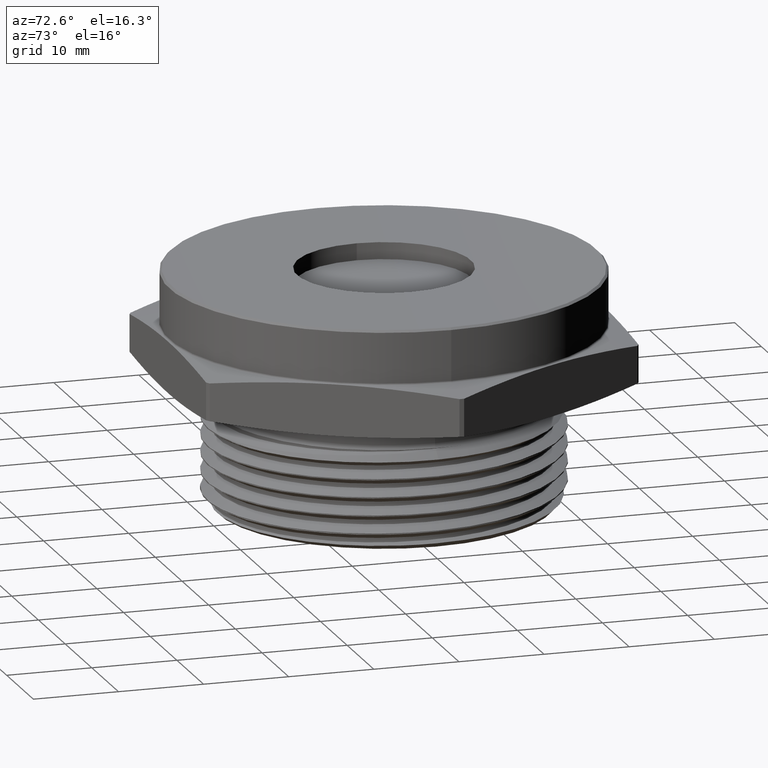
[diagram: clean part render]
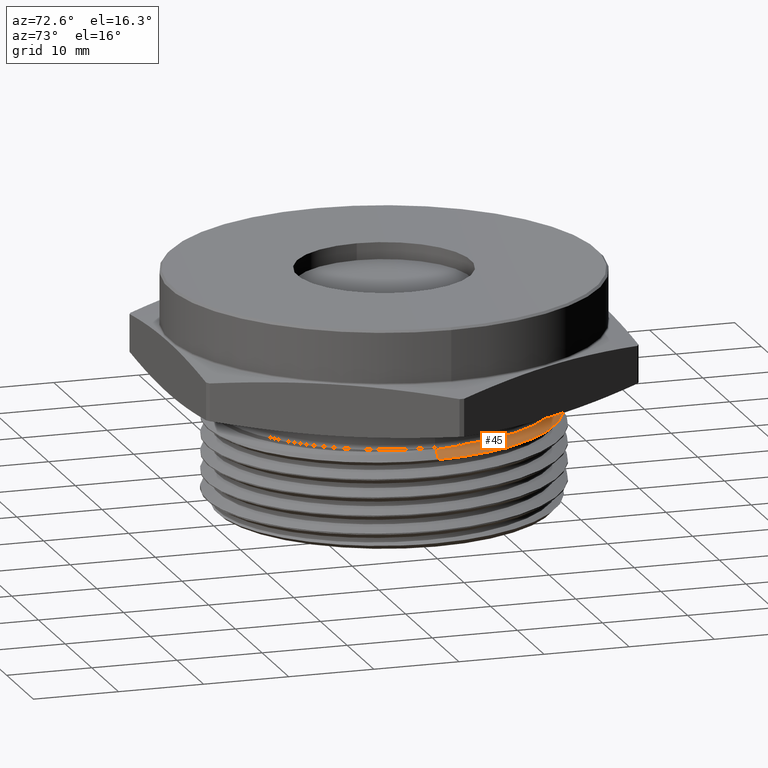
[diagram: same view with one face highlighted and labeled with its STEP entity id]
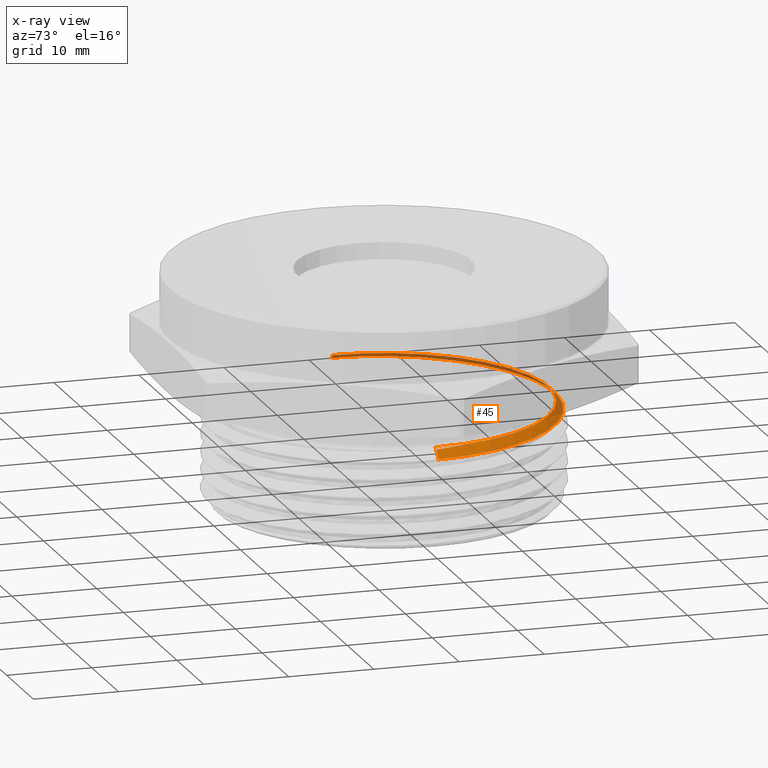
[diagram: x-ray of the same camera — body ghosted, the highlighted face saturated]
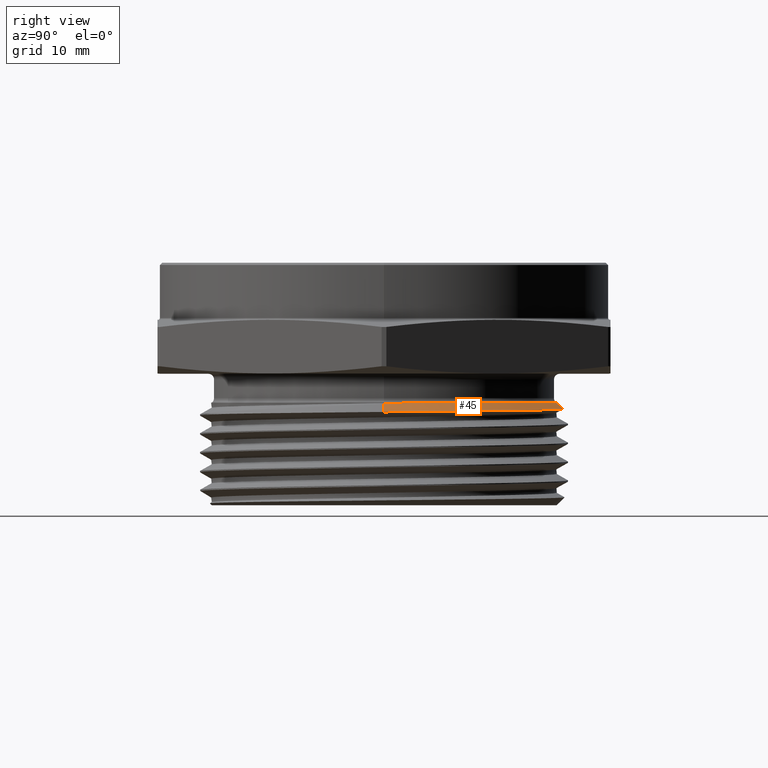
[diagram: same view with one face highlighted and labeled with its STEP entity id]
A machine part, auxiliary view. The second image highlights one B-rep face of the part: STEP entity #45.
The next image is the same camera in x-ray: the body ghosted, the highlighted face saturated — about 36% of this face is hidden behind the body in this view.
A second angle (right view) of the same face is appended — the face is thin or edge-on in the first view.
In plain terms, the highlighted conical surface has half-angle 45 deg.
Its self-contained STEP definition (entity closure, byte-faithful):
#45 = ADVANCED_FACE ( 'NONE', ( #763 ), #767, .T. ) ;
#86 = ORIENTED_EDGE ( 'NONE', *, *, #2910, .T. ) ;
#87 = ORIENTED_EDGE ( 'NONE', *, *, #2925, .F. ) ;
#88 = ORIENTED_EDGE ( 'NONE', *, *, #2930, .F. ) ;
#89 = ORIENTED_EDGE ( 'NONE', *, *, #2911, .T. ) ;
#90 = ORIENTED_EDGE ( 'NONE', *, *, #2955, .F. ) ;
#91 = ORIENTED_EDGE ( 'NONE', *, *, #2954, .F. ) ;
#225 = ORIENTED_EDGE ( 'NONE', *, *, #2900, .F. ) ;
#347 = AXIS2_PLACEMENT_3D ( 'NONE', #2001, #2002, #2003 ) ;
#502 = VERTEX_POINT ( 'NONE', #1937 ) ;
#514 = VERTEX_POINT ( 'NONE', #1949 ) ;
#515 = VERTEX_POINT ( 'NONE', #1950 ) ;
#516 = VERTEX_POINT ( 'NONE', #1951 ) ;
#533 = VERTEX_POINT ( 'NONE', #1968 ) ;
#564 = VERTEX_POINT ( 'NONE', #1974 ) ;
#567 = VERTEX_POINT ( 'NONE', #1971 ) ;
#571 = VECTOR ( 'NONE', #2386, 39.37007874015748100 ) ;
#616 = LINE ( 'NONE', #2638, #619 ) ;
#619 = VECTOR ( 'NONE', #2667, 39.37007874015748100 ) ;
#652 = B_SPLINE_CURVE_WITH_KNOTS ( 'NONE', 3,
 ( #2509, #2508, #2513, #2514, #2515, #2516 ),
 .UNSPECIFIED., .F., .F.,
 ( 4, 2, 4 ),
 ( 1.386310427918241200E-014, 0.001769911165737978300, 0.003539822331462093600 ),
 .UNSPECIFIED. ) ;
#653 = B_SPLINE_CURVE_WITH_KNOTS ( 'NONE', 3,
 ( #2525, #2526, #2531, #2532 ),
 .UNSPECIFIED., .F., .F.,
 ( 4, 4 ),
 ( 0.02832692757914272200, 0.03189190522908355600 ),
 .UNSPECIFIED. ) ;
#659 = B_SPLINE_CURVE_WITH_KNOTS ( 'NONE', 3,
 ( #2668, #2637, #2670, #2671, #2672, #2673, #2674, #2675, #2676, #2677, #2678, #2679, #2680, #2681, #2682, #2683, #2684, #2685, #2686, #2687, #2688, #2689, #2690, #2691, #2692, #2693, #2694, #2695, #2696, #2697, #2698, #2699, #2700, #2701, #2702, #2703, #2704, #2705, #2706, #2707, #2708, #2709, #2710, #2711, #2712, #2713, #2714, #2715, #2716, #2717, #2718, #2719, #2720 ),
 .UNSPECIFIED., .F., .F.,
 ( 4, 2, 2, 1, 2, 2, 2, 2, 2, 2, 2, 2, 2, 2, 2, 2, 2, 2, 2, 2, 2, 2, 2, 2, 2, 2, 4 ),
 ( 0.03438997845069422700, 0.03835951205564315500, 0.04034427885811761600, 0.04232904566059207700, 0.04431381246306654400, 0.04530619586430377500, 0.04629857926554100500, 0.05026811287048994100, 0.05225287967296440800, 0.05423764647543888300, 0.05820718008038782600, 0.06019194688286229300, 0.06217671368533676800, 0.06416148048781124300, 0.06614624729028571700, 0.06813101409276017800, 0.07011578089523465300, 0.07408531450018360200, 0.07607008130265807700, 0.07805484810513255200, 0.08202438171008150100, 0.08400914851255597600, 0.08599391531503045000, 0.08996344891997941400, 0.09393298252492837700, 0.09591774932740285100, 0.09790251612987732600 ),
 .UNSPECIFIED. ) ;
#681 = CIRCLE ( 'NONE', #347, 0.7608223304703362100 ) ;
#697 = LINE ( 'NONE', #2378, #571 ) ;
#698 = LINE ( 'NONE', #2383, #701 ) ;
#701 = VECTOR ( 'NONE', #2385, 39.37007874015748100 ) ;
#735 = EDGE_LOOP ( 'NONE', ( #225, #86, #87, #88, #89, #90, #91 ) ) ;
#763 = FACE_OUTER_BOUND ( 'NONE', #735, .T. ) ;
#767 = CONICAL_SURFACE ( 'NONE', #3050, 0.7608223304703362100, 0.7853981633974495000 ) ;
#1937 = CARTESIAN_POINT ( 'NONE',  ( 0.8040400298460570500, 4.445146054529566800E-013, -0.1682176993757205100 ) ) ;
#1949 = CARTESIAN_POINT ( 'NONE',  ( 0.7608223304703362100, 9.633820780187758700E-017, -0.1249999999999998100 ) ) ;
#1950 = CARTESIAN_POINT ( 'NONE',  ( 0.7685600938738961200, -5.681566719544359700E-013, -0.1327377634035593100 ) ) ;
#1951 = CARTESIAN_POINT ( 'NONE',  ( -0.7776244216704032400, -9.342308343421344400E-013, -0.1418020912000668400 ) ) ;
#1968 = CARTESIAN_POINT ( 'NONE',  ( 0.7502751674670811200, 0.1382157121395530000, -0.1270776695296543500 ) ) ;
#1971 = CARTESIAN_POINT ( 'NONE',  ( -0.7608223304703362100, 0.0000000000000000000, -0.1249999999999998100 ) ) ;
#1974 = CARTESIAN_POINT ( 'NONE',  ( 0.7629000000000002400, 3.261332281521057500E-016, -0.1270776695296640100 ) ) ;
#2001 = CARTESIAN_POINT ( 'NONE',  ( 0.0000000000000000000, 0.0000000000000000000, -0.1249999999999998100 ) ) ;
#2002 = DIRECTION ( 'NONE',  ( -0.0000000000000000000, -0.0000000000000000000, 1.000000000000000000 ) ) ;
#2003 = DIRECTION ( 'NONE',  ( 1.000000000000000000, 0.0000000000000000000, 0.0000000000000000000 ) ) ;
#2378 = CARTESIAN_POINT ( 'NONE',  ( 0.7608223304703362100, 9.317386317303269300E-017, -0.1249999999999998100 ) ) ;
#2383 = CARTESIAN_POINT ( 'NONE',  ( 0.7608223304703362100, 9.317386317303269300E-017, -0.1249999999999998100 ) ) ;
#2385 = DIRECTION ( 'NONE',  ( 0.7071067811865483500, 8.659560562354942700E-017, -0.7071067811865466800 ) ) ;
#2386 = DIRECTION ( 'NONE',  ( 0.7071067811865483500, 8.659560562354942700E-017, -0.7071067811865466800 ) ) ;
#2508 = CARTESIAN_POINT ( 'NONE',  ( 0.7544848409670316100, 0.1153643775027152900, -0.1270776695296639600 ) ) ;
#2509 = CARTESIAN_POINT ( 'NONE',  ( 0.7502751674670811200, 0.1382157121395530000, -0.1270776695296543500 ) ) ;
#2513 = CARTESIAN_POINT ( 'NONE',  ( 0.7576495484054481800, 0.09230300943150211700, -0.1270776695296639300 ) ) ;
#2514 = CARTESIAN_POINT ( 'NONE',  ( 0.7618531252159053100, 0.04617899249495229600, -0.1270776695296638700 ) ) ;
#2515 = CARTESIAN_POINT ( 'NONE',  ( 0.7629000000000004700, 0.02309861217374308700, -0.1270776695296639300 ) ) ;
#2516 = CARTESIAN_POINT ( 'NONE',  ( 0.7629000000000002400, 3.261332281521057500E-016, -0.1270776695296640100 ) ) ;
#2525 = CARTESIAN_POINT ( 'NONE',  ( 0.7685600938738961200, -5.681566719544359700E-013, -0.1327377634035593100 ) ) ;
#2526 = CARTESIAN_POINT ( 'NONE',  ( 0.7667279252069905100, 0.04640995617913124700, -0.1309055947366198900 ) ) ;
#2531 = CARTESIAN_POINT ( 'NONE',  ( 0.7606747653685247400, 0.09248520371732875400, -0.1290201066368094900 ) ) ;
#2532 = CARTESIAN_POINT ( 'NONE',  ( 0.7502751674670811200, 0.1382157121395530000, -0.1270776695296543500 ) ) ;
#2637 = CARTESIAN_POINT ( 'NONE',  ( -0.7781640001680116800, 0.05161072374443349100, -0.1423416696976134700 ) ) ;
#2638 = CARTESIAN_POINT ( 'NONE',  ( -0.7608223304703362100, 0.0000000000000000000, -0.1249999999999998100 ) ) ;
#2667 = DIRECTION ( 'NONE',  ( -0.7071067811865483500, 0.0000000000000000000, -0.7071067811865466800 ) ) ;
#2668 = CARTESIAN_POINT ( 'NONE',  ( -0.7776244216704032400, -9.342308343421344400E-013, -0.1418020912000668400 ) ) ;
#2670 = CARTESIAN_POINT ( 'NONE',  ( -0.7736295809057398600, 0.1029497517781679700, -0.1428945667722044700 ) ) ;
#2671 = CARTESIAN_POINT ( 'NONE',  ( -0.7590545462251236900, 0.1795420561845035600, -0.1437440943042659900 ) ) ;
#2672 = CARTESIAN_POINT ( 'NONE',  ( -0.7528725223704901800, 0.2049964077008337700, -0.1440306507660915100 ) ) ;
#2673 = CARTESIAN_POINT ( 'NONE',  ( -0.7381656512357067700, 0.2546309587482890000, -0.1445977897533170500 ) ) ;
#2674 = CARTESIAN_POINT ( 'NONE',  ( -0.7210692405159755400, 0.3032849201944229400, -0.1451621821211633900 ) ) ;
#2675 = CARTESIAN_POINT ( 'NONE',  ( -0.6992668839984621500, 0.3500077138115441100, -0.1457211816064679400 ) ) ;
#2676 = CARTESIAN_POINT ( 'NONE',  ( -0.6811252807433974000, 0.3843153180897637100, -0.1461383996225620600 ) ) ;
#2677 = CARTESIAN_POINT ( 'NONE',  ( -0.6747792309265451300, 0.3956285482964193600, -0.1462771332120682800 ) ) ;
#2678 = CARTESIAN_POINT ( 'NONE',  ( -0.6614783708472922200, 0.4180051929884201500, -0.1465539145930139500 ) ) ;
#2679 = CARTESIAN_POINT ( 'NONE',  ( -0.6545120115891823700, 0.4290827127428301100, -0.1466921469192900600 ) ) ;
#2680 = CARTESIAN_POINT ( 'NONE',  ( -0.6185363557468474000, 0.4832327469962468000, -0.1473739829222042200 ) ) ;
#2681 = CARTESIAN_POINT ( 'NONE',  ( -0.5858777193958848400, 0.5231126494542113200, -0.1479110558556056000 ) ) ;
#2682 = CARTESIAN_POINT ( 'NONE',  ( -0.5312419244632010700, 0.5779219343441297500, -0.1487452977096862500 ) ) ;
#2683 = CARTESIAN_POINT ( 'NONE',  ( -0.5120802444623116000, 0.5953491425463819400, -0.1490260637952407500 ) ) ;
#2684 = CARTESIAN_POINT ( 'NONE',  ( -0.4717953974028706900, 0.6284634586238453400, -0.1495931261626103300 ) ) ;
#2685 = CARTESIAN_POINT ( 'NONE',  ( -0.4508761072978848500, 0.6439724487653010200, -0.1498764832150810700 ) ) ;
#2686 = CARTESIAN_POINT ( 'NONE',  ( -0.3864338145101363100, 0.6870105365928607100, -0.1507181694975078300 ) ) ;
#2687 = CARTESIAN_POINT ( 'NONE',  ( -0.3410043440660172100, 0.7112815054738321800, -0.1512715485968985100 ) ) ;
#2688 = CARTESIAN_POINT ( 'NONE',  ( -0.2691167059020993500, 0.7409819420394033700, -0.1520900363352022400 ) ) ;
#2689 = CARTESIAN_POINT ( 'NONE',  ( -0.2444378593108290100, 0.7497720267825416200, -0.1523589221074134500 ) ) ;
#2690 = CARTESIAN_POINT ( 'NONE',  ( -0.1945606839924267400, 0.7647937030221490000, -0.1529013192593403600 ) ) ;
#2691 = CARTESIAN_POINT ( 'NONE',  ( -0.1692944904270050600, 0.7710626962907474200, -0.1531757997804005500 ) ) ;
#2692 = CARTESIAN_POINT ( 'NONE',  ( -0.1181040039299386100, 0.7811060489675534200, -0.1537313148996582700 ) ) ;
#2693 = CARTESIAN_POINT ( 'NONE',  ( -0.09229395715564696300, 0.7848483237851029400, -0.1540111074427769100 ) ) ;
#2694 = CARTESIAN_POINT ( 'NONE',  ( -0.04082530714483004200, 0.7897588864678531900, -0.1545684578289244200 ) ) ;
#2695 = CARTESIAN_POINT ( 'NONE',  ( -0.01508101605127931000, 0.7909447962754164700, -0.1548469458060625100 ) ) ;
#2696 = CARTESIAN_POINT ( 'NONE',  ( 0.03642727495949588100, 0.7908063268751895900, -0.1554035472876836900 ) ) ;
#2697 = CARTESIAN_POINT ( 'NONE',  ( 0.06219127458082093100, 0.7894819853648698000, -0.1556816607911282700 ) ) ;
#2698 = CARTESIAN_POINT ( 'NONE',  ( 0.1137393300078216700, 0.7842787529291196400, -0.1562375194273012100 ) ) ;
#2699 = CARTESIAN_POINT ( 'NONE',  ( 0.1396599645559354900, 0.7803655200083088300, -0.1565167326952997000 ) ) ;
#2700 = CARTESIAN_POINT ( 'NONE',  ( 0.2160104190866725400, 0.7649441518927279100, -0.1573383207670174300 ) ) ;
#2701 = CARTESIAN_POINT ( 'NONE',  ( 0.2652624784992845300, 0.7498184286245174200, -0.1578578672885652700 ) ) ;
#2702 = CARTESIAN_POINT ( 'NONE',  ( 0.3367361642357977200, 0.7200648212699571900, -0.1586703948659593500 ) ) ;
#2703 = CARTESIAN_POINT ( 'NONE',  ( 0.3601565944666414400, 0.7089594038320261600, -0.1589449632195073500 ) ) ;
#2704 = CARTESIAN_POINT ( 'NONE',  ( 0.4061612432446269300, 0.6842913447426611800, -0.1595017810107300600 ) ) ;
#2705 = CARTESIAN_POINT ( 'NONE',  ( 0.4284149030971083300, 0.6709026111380133100, -0.1597800498686111100 ) ) ;
#2706 = CARTESIAN_POINT ( 'NONE',  ( 0.4927748951762324100, 0.6278103853412554400, -0.1606115941914936000 ) ) ;
#2707 = CARTESIAN_POINT ( 'NONE',  ( 0.5326065603877709900, 0.5951520881680729700, -0.1611628898153347800 ) ) ;
#2708 = CARTESIAN_POINT ( 'NONE',  ( 0.5876783169067106800, 0.5401885879407659600, -0.1619852503331208900 ) ) ;
#2709 = CARTESIAN_POINT ( 'NONE',  ( 0.6053083410985531400, 0.5207771287463548400, -0.1622596456987497000 ) ) ;
#2710 = CARTESIAN_POINT ( 'NONE',  ( 0.6382492933045061900, 0.4807291496838150800, -0.1627955448721828100 ) ) ;
#2711 = CARTESIAN_POINT ( 'NONE',  ( 0.6536471660564170400, 0.4600167174366889800, -0.1630561493408508000 ) ) ;
#2712 = CARTESIAN_POINT ( 'NONE',  ( 0.6967181969776705700, 0.3958756672820050700, -0.1638532912090259200 ) ) ;
#2713 = CARTESIAN_POINT ( 'NONE',  ( 0.7213262146415361200, 0.3503765752130913500, -0.1643979796207961900 ) ) ;
#2714 = CARTESIAN_POINT ( 'NONE',  ( 0.7617472709903031500, 0.2541570163549353200, -0.1655090529902284700 ) ) ;
#2715 = CARTESIAN_POINT ( 'NONE',  ( 0.7769815465570119000, 0.2048580540135051800, -0.1660590873908286400 ) ) ;
#2716 = CARTESIAN_POINT ( 'NONE',  ( 0.7926520891209715100, 0.1291935868796201000, -0.1668762324163421700 ) ) ;
#2717 = CARTESIAN_POINT ( 'NONE',  ( 0.7966701785002012800, 0.1036840356542088900, -0.1671472887280047700 ) ) ;
#2718 = CARTESIAN_POINT ( 'NONE',  ( 0.8022396653357691800, 0.05207546443913243400, -0.1676867182833421400 ) ) ;
#2719 = CARTESIAN_POINT ( 'NONE',  ( 0.8037780731356032300, 0.02590732794001190200, -0.1679557426652807700 ) ) ;
#2720 = CARTESIAN_POINT ( 'NONE',  ( 0.8040400298460570500, 4.445146054529566800E-013, -0.1682176993757205100 ) ) ;
#2900 = EDGE_CURVE ( 'NONE', #514, #567, #681, .T. ) ;
#2910 = EDGE_CURVE ( 'NONE', #514, #564, #698, .T. ) ;
#2911 = EDGE_CURVE ( 'NONE', #515, #502, #697, .T. ) ;
#2925 = EDGE_CURVE ( 'NONE', #533, #564, #652, .T. ) ;
#2930 = EDGE_CURVE ( 'NONE', #515, #533, #653, .T. ) ;
#2954 = EDGE_CURVE ( 'NONE', #567, #516, #616, .T. ) ;
#2955 = EDGE_CURVE ( 'NONE', #516, #502, #659, .T. ) ;
#3050 = AXIS2_PLACEMENT_3D ( 'NONE', #3367, #3366, #3369 ) ;
#3366 = DIRECTION ( 'NONE',  ( 0.0000000000000000000, 0.0000000000000000000, -1.000000000000000000 ) ) ;
#3367 = CARTESIAN_POINT ( 'NONE',  ( 0.0000000000000000000, 0.0000000000000000000, -0.1249999999999998100 ) ) ;
#3369 = DIRECTION ( 'NONE',  ( -1.000000000000000000, 0.0000000000000000000, 0.0000000000000000000 ) ) ;